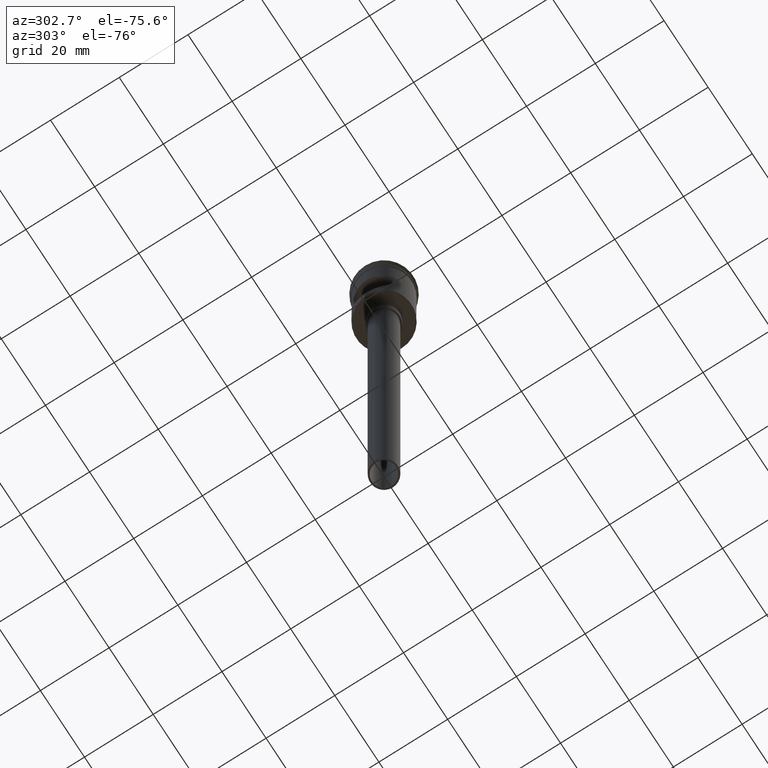
[diagram: clean part render]
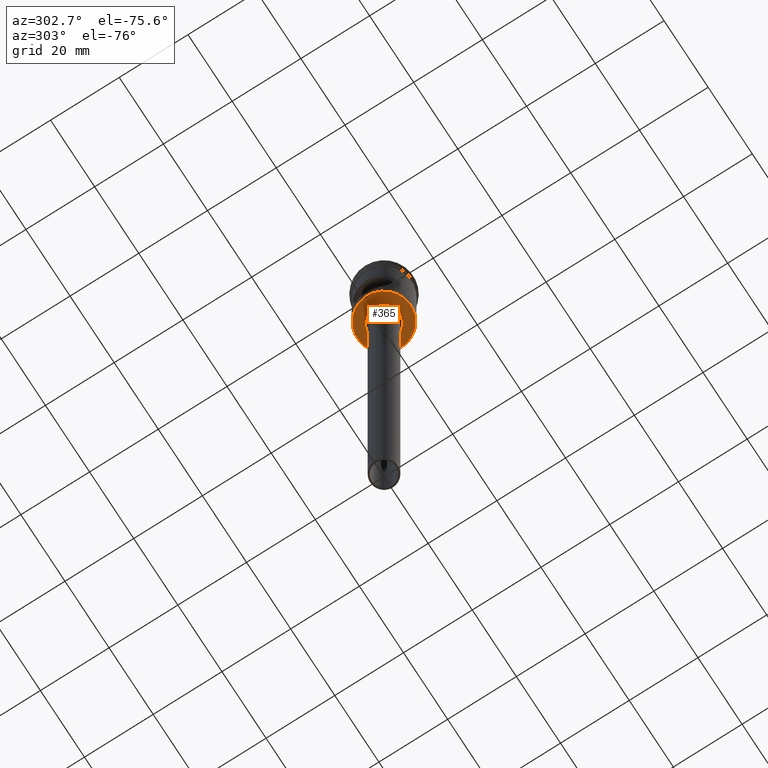
[diagram: same view with one face highlighted and labeled with its STEP entity id]
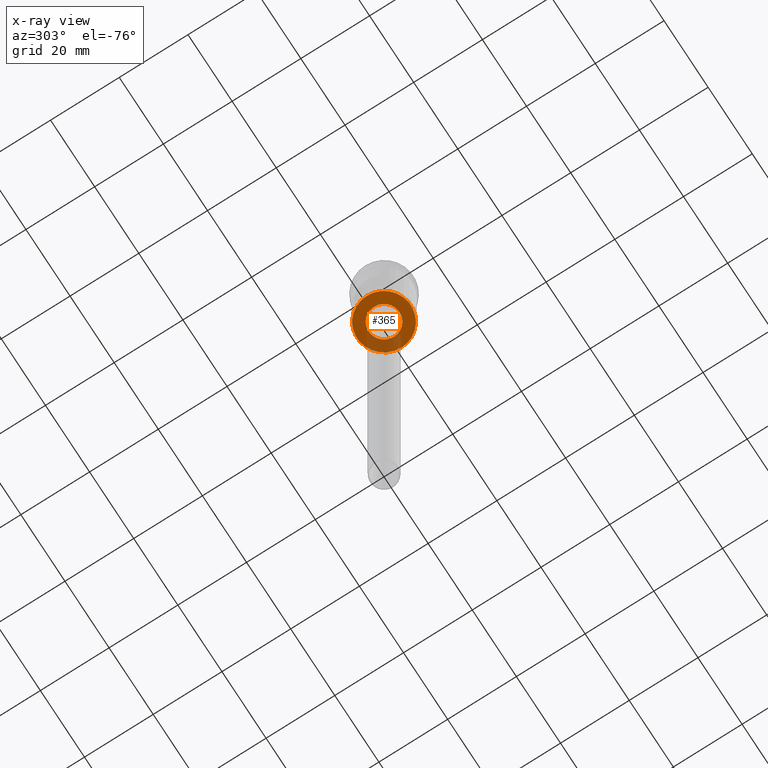
[diagram: x-ray of the same camera — body ghosted, the highlighted face saturated]
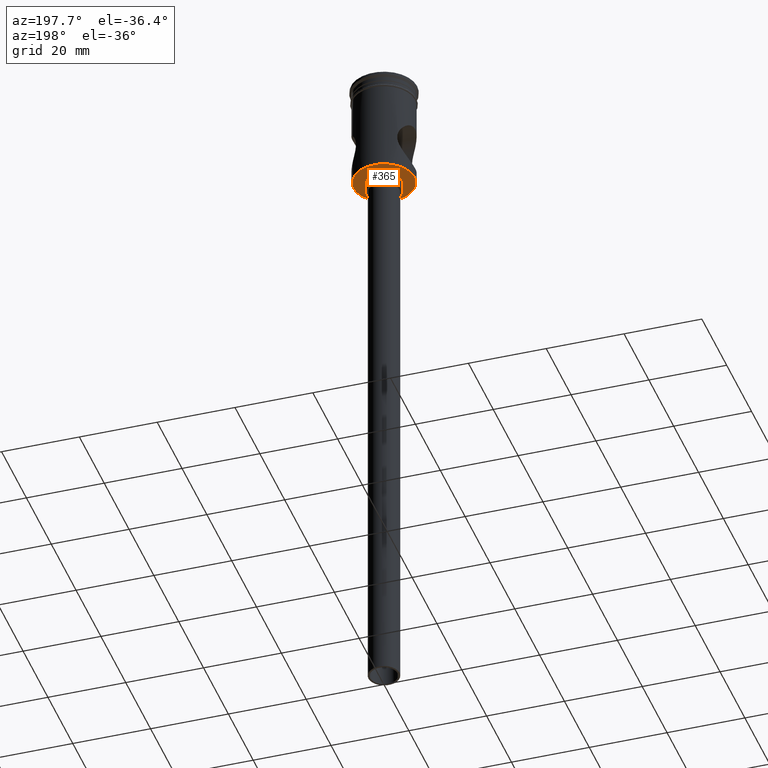
[diagram: same view with one face highlighted and labeled with its STEP entity id]
A machine part, auxiliary view. The second image highlights one B-rep face of the part: STEP entity #365.
The next image is the same camera in x-ray: the body ghosted, the highlighted face saturated — about 23% of this face is hidden behind the body in this view.
A second angle (auxiliary view) of the same face is appended — the face is thin or edge-on in the first view.
In plain terms, the highlighted planar face has unit normal (0, 0, -1).
Its self-contained STEP definition (entity closure, byte-faithful):
#89 = EDGE_CURVE ( 'NONE', #1244, #868, #425, .T. ) ;
#127 = ORIENTED_EDGE ( 'NONE', *, *, #518, .T. ) ;
#177 = CARTESIAN_POINT ( 'NONE',  ( 0.000000000000000000, 0.000000000000000000, -27.50000000000000000 ) ) ;
#196 = AXIS2_PLACEMENT_3D ( 'NONE', #177, #296, #670 ) ;
#240 = EDGE_CURVE ( 'NONE', #1407, #934, #553, .T. ) ;
#260 = ORIENTED_EDGE ( 'NONE', *, *, #742, .F. ) ;
#271 = AXIS2_PLACEMENT_3D ( 'NONE', #1295, #471, #479 ) ;
#296 = DIRECTION ( 'NONE',  ( 0.000000000000000000, 0.000000000000000000, -1.000000000000000000 ) ) ;
#311 = CARTESIAN_POINT ( 'NONE',  ( -4.500000000000000000, 5.510910596163088569E-16, -27.50000000000000000 ) ) ;
#359 = DIRECTION ( 'NONE',  ( 0.000000000000000000, 0.000000000000000000, -1.000000000000000000 ) ) ;
#365 = ADVANCED_FACE ( 'NONE', ( #884, #1340 ), #915, .T. ) ;
#374 = ORIENTED_EDGE ( 'NONE', *, *, #89, .T. ) ;
#425 = CIRCLE ( 'NONE', #271, 7.799999999999987388 ) ;
#435 = CARTESIAN_POINT ( 'NONE',  ( 0.000000000000000000, 7.999999999999992895, -27.50000000000000000 ) ) ;
#447 = DIRECTION ( 'NONE',  ( -1.000000000000000000, 0.000000000000000000, 0.000000000000000000 ) ) ;
#471 = DIRECTION ( 'NONE',  ( 0.000000000000000000, 0.000000000000000000, -1.000000000000000000 ) ) ;
#473 = EDGE_LOOP ( 'NONE', ( #260, #1017 ) ) ;
#479 = DIRECTION ( 'NONE',  ( -1.000000000000000000, 0.000000000000000000, 0.000000000000000000 ) ) ;
#506 = DIRECTION ( 'NONE',  ( -1.000000000000000000, 0.000000000000000000, 0.000000000000000000 ) ) ;
#518 = EDGE_CURVE ( 'NONE', #868, #1244, #1097, .T. ) ;
#553 = CIRCLE ( 'NONE', #1250, 4.500000000000000000 ) ;
#565 = CARTESIAN_POINT ( 'NONE',  ( 7.799999999999987388, 0.000000000000000000, -27.50000000000000000 ) ) ;
#631 = DIRECTION ( 'NONE',  ( 0.000000000000000000, 0.000000000000000000, -1.000000000000000000 ) ) ;
#670 = DIRECTION ( 'NONE',  ( -1.000000000000000000, 0.000000000000000000, 0.000000000000000000 ) ) ;
#721 = CARTESIAN_POINT ( 'NONE',  ( 0.000000000000000000, 0.000000000000000000, -27.50000000000000000 ) ) ;
#733 = CARTESIAN_POINT ( 'NONE',  ( 0.000000000000000000, 0.000000000000000000, -27.50000000000000000 ) ) ;
#742 = EDGE_CURVE ( 'NONE', #934, #1407, #1118, .T. ) ;
#801 = CARTESIAN_POINT ( 'NONE',  ( -7.799999999999987388, 9.674709713264080254E-16, -27.50000000000000000 ) ) ;
#868 = VERTEX_POINT ( 'NONE', #565 ) ;
#884 = FACE_OUTER_BOUND ( 'NONE', #1401, .T. ) ;
#909 = DIRECTION ( 'NONE',  ( -1.000000000000000000, 0.000000000000000000, -0.000000000000000000 ) ) ;
#915 = PLANE ( 'NONE',  #919 ) ;
#919 = AXIS2_PLACEMENT_3D ( 'NONE', #435, #1241, #909 ) ;
#934 = VERTEX_POINT ( 'NONE', #1170 ) ;
#1017 = ORIENTED_EDGE ( 'NONE', *, *, #240, .F. ) ;
#1097 = CIRCLE ( 'NONE', #1142, 7.799999999999987388 ) ;
#1118 = CIRCLE ( 'NONE', #196, 4.500000000000000000 ) ;
#1142 = AXIS2_PLACEMENT_3D ( 'NONE', #721, #359, #447 ) ;
#1170 = CARTESIAN_POINT ( 'NONE',  ( 4.500000000000000000, 0.000000000000000000, -27.50000000000000000 ) ) ;
#1241 = DIRECTION ( 'NONE',  ( 0.000000000000000000, 0.000000000000000000, -1.000000000000000000 ) ) ;
#1244 = VERTEX_POINT ( 'NONE', #801 ) ;
#1250 = AXIS2_PLACEMENT_3D ( 'NONE', #733, #631, #506 ) ;
#1295 = CARTESIAN_POINT ( 'NONE',  ( 0.000000000000000000, 0.000000000000000000, -27.50000000000000000 ) ) ;
#1340 = FACE_BOUND ( 'NONE', #473, .T. ) ;
#1401 = EDGE_LOOP ( 'NONE', ( #127, #374 ) ) ;
#1407 = VERTEX_POINT ( 'NONE', #311 ) ;